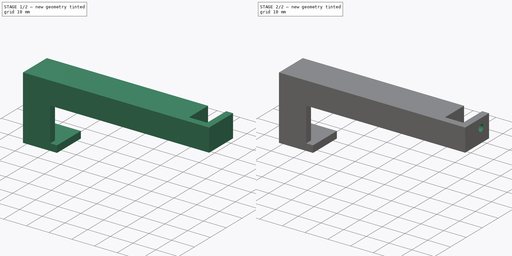
[diagram: build sequence overview — one tinted view per stage of 2, left to right]
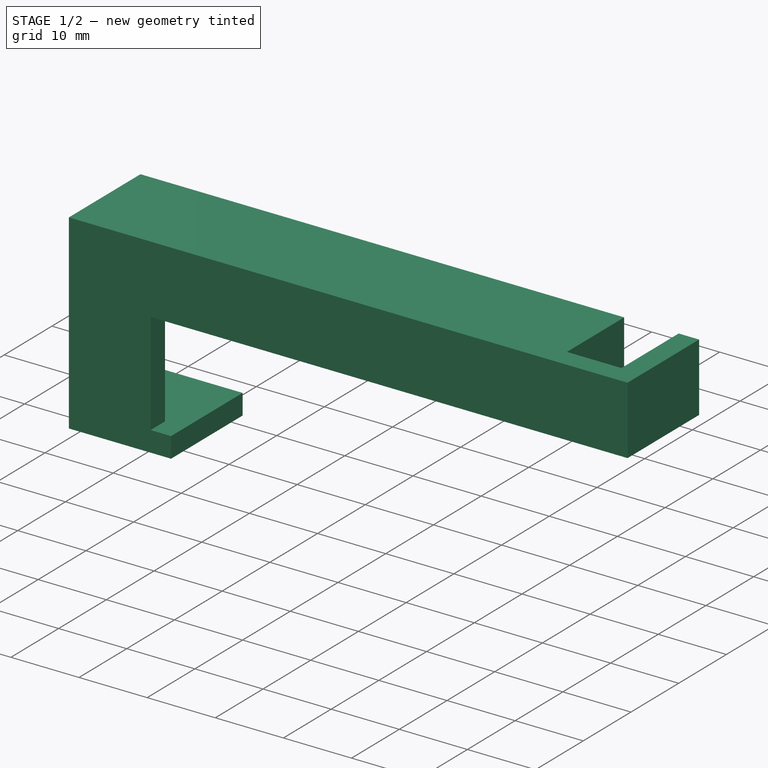
[diagram: stage 1 of 2 — iso view after this stage's code; geometry added in this stage tinted green]
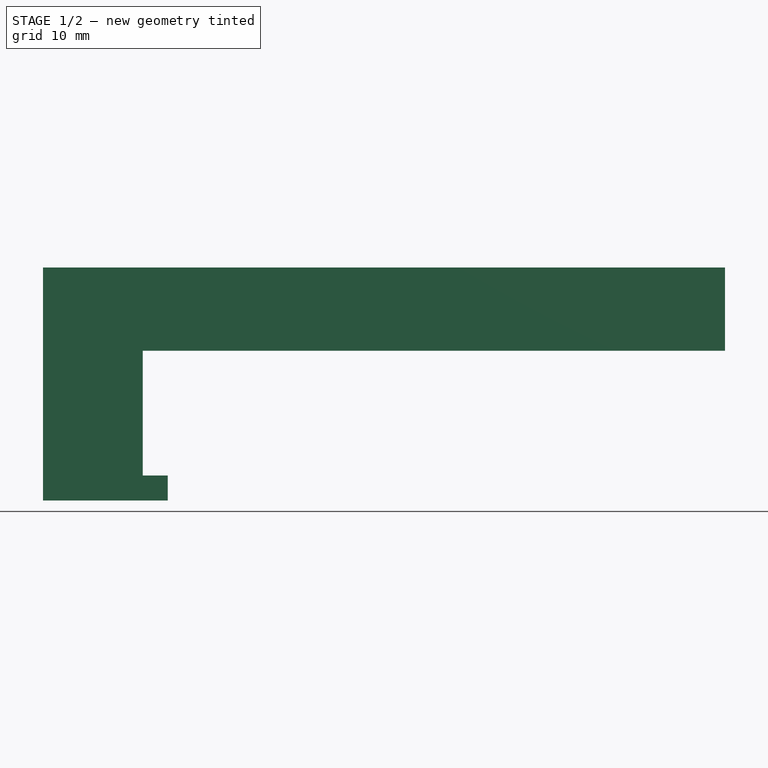
[diagram: stage 1 of 2 — front view after this stage's code; geometry added in this stage tinted green]
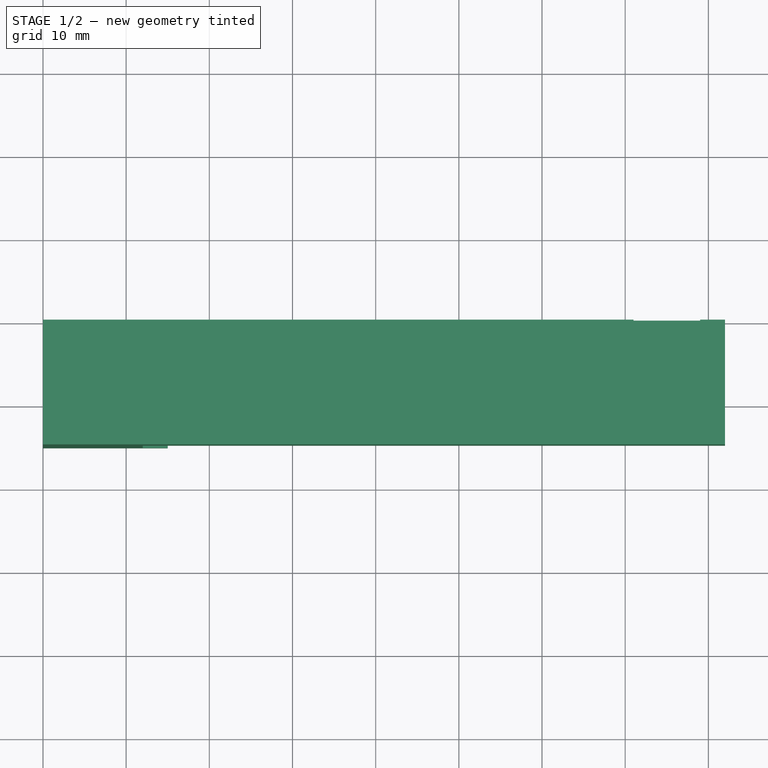
[diagram: stage 1 of 2 — top view after this stage's code; geometry added in this stage tinted green]
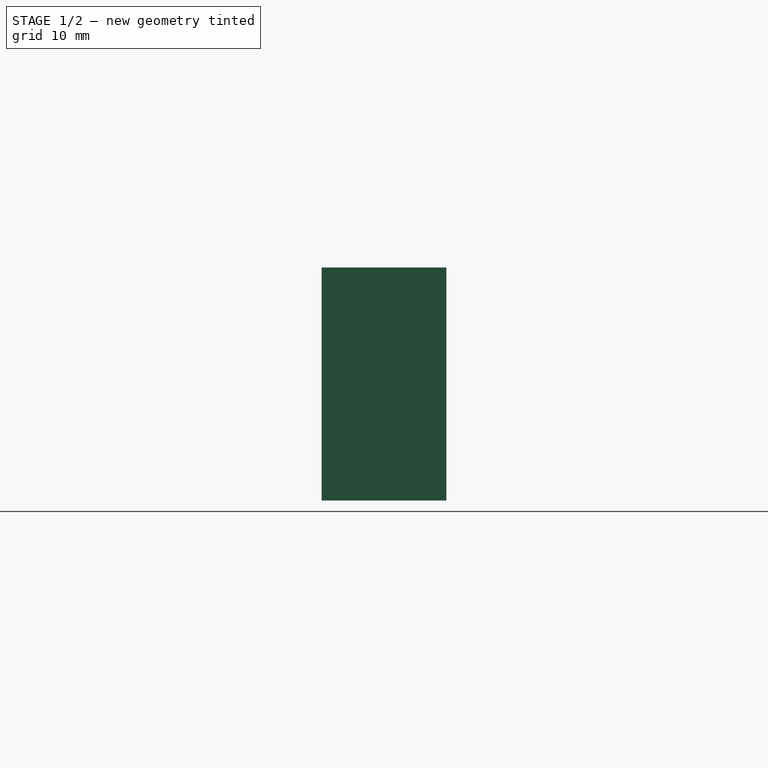
[diagram: stage 1 of 2 — right view after this stage's code; geometry added in this stage tinted green]
FCSTD DOCUMENT  (FreeCAD 1.0R39109 (Git))
Label: Wirecover
License: All rights reserved
LicenseURL: http://en.wikipedia.org/wiki/All_rights_reserved
objects: Sketcher::SketchObject×2, PartDesign::Pad×2, PartDesign::SubtractiveCylinder×1, PartDesign::Body×1
note: 14 computed .brp shape members not serialized (recipe doc carries the construction recipe); baked Part::Feature solids carry a one-line shape summary decoded from their .brp

FEATURE [Sketcher::SketchObject] Sketch
  ArcFitTolerance = 1e-06
  AttachmentSupport = -> [XZ_Plane]
  FullyConstrained = true
  MakeInternals = false
  MapMode = 5
  Placement = pos=(0,0,0) rot=(1,0,0;1.5708rad)
  sketch-geometry (14):
    g0: LineSegment StartX=82 StartY=18 StartZ=0 EndX=82 EndY=28 EndZ=0
    g1: LineSegment StartX=71 StartY=28 StartZ=0 EndX=0 EndY=28 EndZ=0
    g2: LineSegment StartX=0 StartY=28 StartZ=0 EndX=0 EndY=0 EndZ=0
    g3: LineSegment StartX=0 StartY=0 StartZ=0 EndX=15 EndY=0 EndZ=0
    g4: LineSegment StartX=15 StartY=0 StartZ=0 EndX=15 EndY=3 EndZ=0
    g5: LineSegment StartX=15 StartY=3 StartZ=0 EndX=3 EndY=3 EndZ=0
    g6: LineSegment StartX=3 StartY=3 StartZ=0 EndX=3 EndY=25 EndZ=0
    g7: LineSegment StartX=3 StartY=25 StartZ=0 EndX=68 EndY=25 EndZ=0
    g8: LineSegment StartX=68 StartY=18 StartZ=0 EndX=82 EndY=18 EndZ=0
    g9: LineSegment StartX=68 StartY=18 StartZ=0 EndX=68 EndY=25 EndZ=0
    g10: LineSegment StartX=71 StartY=28 StartZ=0 EndX=71 EndY=21 EndZ=0
    g11: LineSegment StartX=71 StartY=21 StartZ=0 EndX=79 EndY=21 EndZ=0
    g12: LineSegment StartX=79 StartY=21 StartZ=0 EndX=79 EndY=28 EndZ=0
    g13: LineSegment StartX=79 StartY=28 StartZ=0 EndX=82 EndY=28 EndZ=0
  constraints (42):
    c: Vertical(g0)
    c: Horizontal(g1)
    c: Coincident(g1,g2)
    c: Vertical(g2)
    c: Coincident(g2,g3)
    c: Horizontal(g3)
    c: Coincident(g3,g4)
    c: Vertical(g4)
    c: Coincident(g4,g5)
    c: Horizontal(g5)
    c: Coincident(g5,g6)
    c: Vertical(g6)
    c: Coincident(g6,g7)
    c: Horizontal(g7)
    c: Coincident(g8,g0)
    c: Horizontal(g8)
    c: DistanceY(g4,g4) = 3
    c: DistanceX(g1,g6) = 3
    c: DistanceX(g3,g3) = 15
    c: DistanceY(g2,g2) = 28
    c: DistanceX(g2) = 0
    c: DistanceY(g2) = 0
    c: Coincident(g9,g7)
    c: Vertical(g9)
    c: DistanceX(g1,g0) = 82
    c: Coincident(g8,g9)
    c: Coincident(g1,g10)
    c: Vertical(g10)
    c: Coincident(g10,g11)
    c: Horizontal(g11)
    c: Coincident(g11,g12)
    c: Vertical(g12)
    c: Coincident(g12,g13)
    c: Coincident(g13,g0)
    c: Horizontal(g13)
    c: DistanceY(g12,g1) = 0
    c: DistanceX(g13,g13) = 3
    c: DistanceX(g8,g10) = 3
    c: DistanceX(g11,g11) = 8
    c: DistanceY(g0,g0) = 10
    c: DistanceY(g0,g11) = 3
    c: DistanceY(g7,g1) = 3
FEATURE [PartDesign::Pad] Pad
  Direction = (0,-1,2e-16)
  Length = 12
  Length2 = 10
  Placement = pos=(0,0,0) rot=(1,0,0;1.5708rad)
  Profile = -> Sketch
  ReferenceAxis = -> Sketch [N_Axis]
  Suppressed = false
  Type = 0
FEATURE [Sketcher::SketchObject] Sketch001
  ArcFitTolerance = 1e-06
  AttachmentOffset = pos=(0,0,12) rot=(0,0,1;0rad)
  AttachmentSupport = -> [XZ_Plane]
  FullyConstrained = true
  MakeInternals = false
  MapMode = 5
  Placement = pos=(0,-12,2.7e-15) rot=(1,0,0;1.5708rad)
  sketch-geometry (8):
    g0: LineSegment StartX=0 StartY=28 StartZ=0 EndX=82 EndY=28 EndZ=0
    g1: LineSegment StartX=82 StartY=28 StartZ=0 EndX=82 EndY=18 EndZ=0
    g2: LineSegment StartX=82 StartY=18 StartZ=0 EndX=12 EndY=18 EndZ=0
    g3: LineSegment StartX=12 StartY=18 StartZ=0 EndX=12 EndY=3 EndZ=0
    g4: LineSegment StartX=15 StartY=0 StartZ=0 EndX=0 EndY=0 EndZ=0
    g5: LineSegment StartX=0 StartY=0 StartZ=0 EndX=0 EndY=28 EndZ=0
    g6: LineSegment StartX=12 StartY=3 StartZ=0 EndX=15 EndY=3 EndZ=0
    g7: LineSegment StartX=15 StartY=3 StartZ=0 EndX=15 EndY=0 EndZ=0
  constraints (24):
    c: Horizontal(g0)
    c: Coincident(g0,g1)
    c: Vertical(g1)
    c: Coincident(g1,g2)
    c: Horizontal(g2)
    c: Coincident(g2,g3)
    c: Vertical(g3)
    c: Horizontal(g4)
    c: Coincident(g4,g5)
    c: Coincident(g5,g0)
    c: Vertical(g5)
    c: DistanceX(g4) = 0
    c: DistanceX(g0,g0) = 82
    c: DistanceY(g5,g5) = 28
    c: DistanceY(g1,g1) = 10
    c: DistanceX(g4,g2) = 12
    c: DistanceX(g4,g4) = 15
    c: Coincident(g3,g6)
    c: Horizontal(g6)
    c: Coincident(g6,g7)
    c: Coincident(g7,g4)
    c: Vertical(g7)
    c: DistanceY(g7,g7) = 3
    c: DistanceY(g4,g-1) = 0
FEATURE [PartDesign::Pad] Pad001
  BaseFeature = -> Pad
  Direction = (0,-1,2e-16)
  Length = 3
  Length2 = 10
  Placement = pos=(0,0,0) rot=(1,0,0;1.5708rad)
  Profile = -> Sketch001
  ReferenceAxis = -> Sketch001 [N_Axis]
  Suppressed = false
  Type = 0
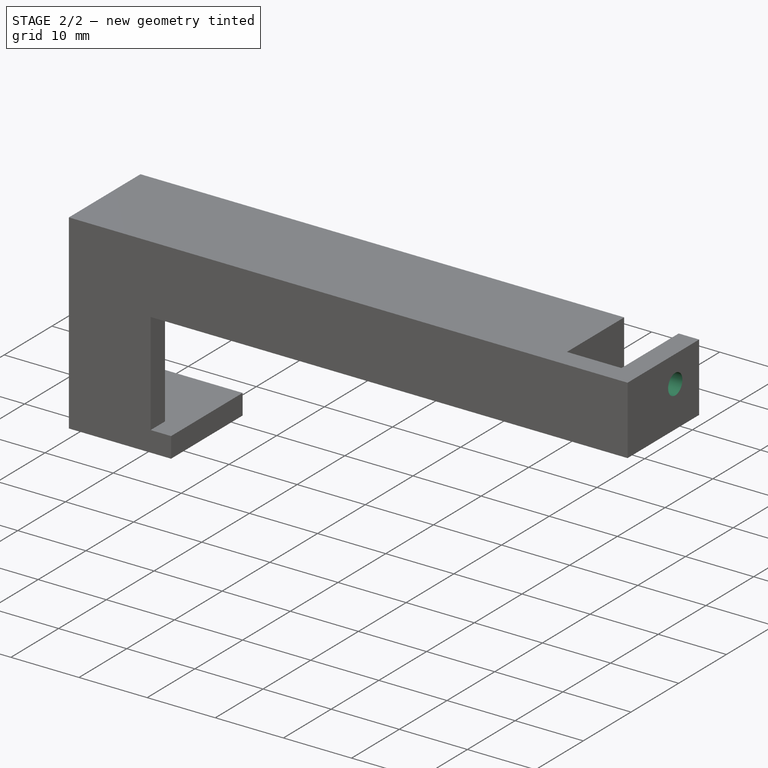
[diagram: stage 2 of 2 — iso view after this stage's code; geometry added in this stage tinted green]
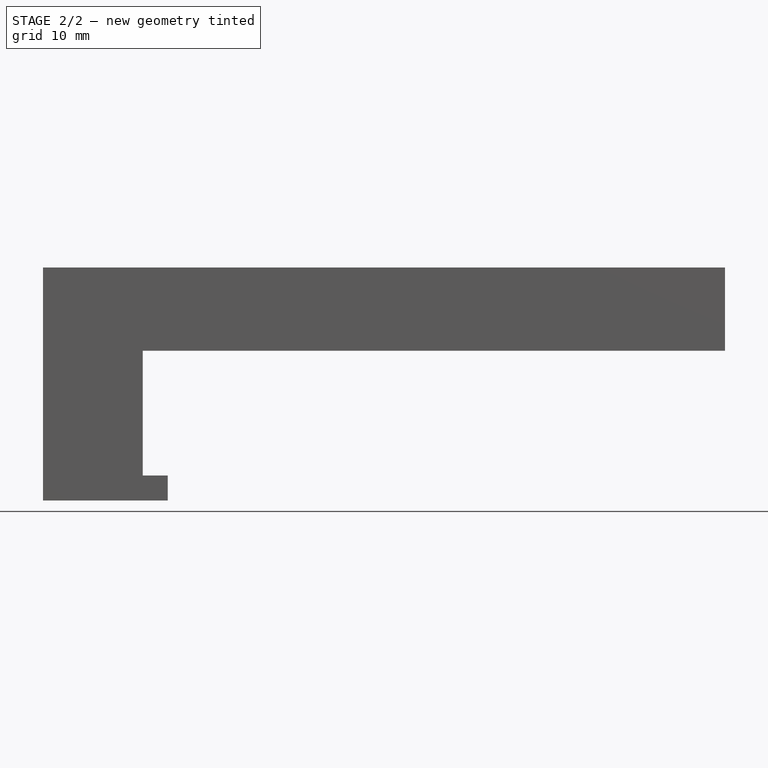
[diagram: stage 2 of 2 — front view after this stage's code; geometry added in this stage tinted green]
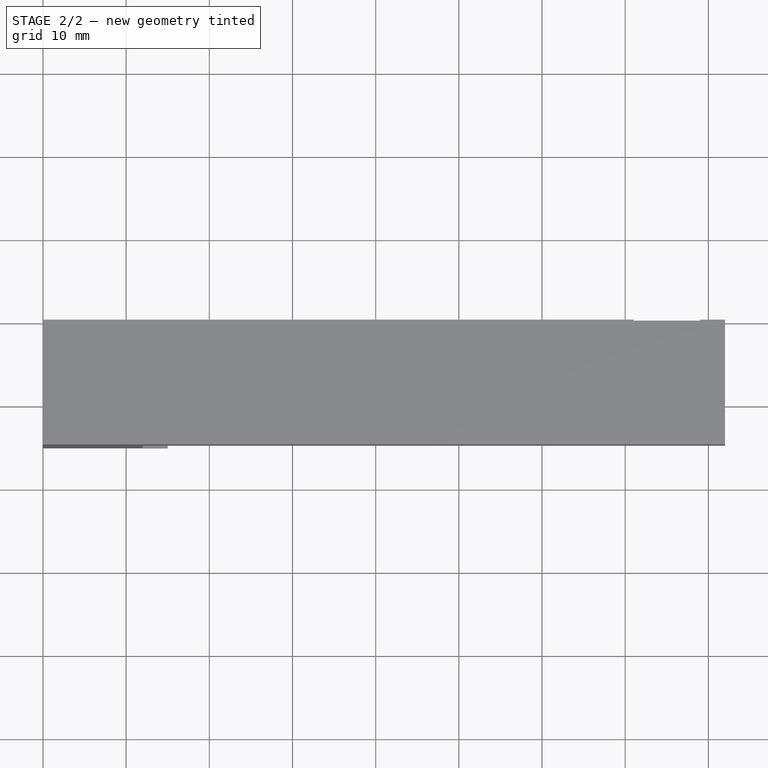
[diagram: stage 2 of 2 — top view after this stage's code; geometry added in this stage tinted green]
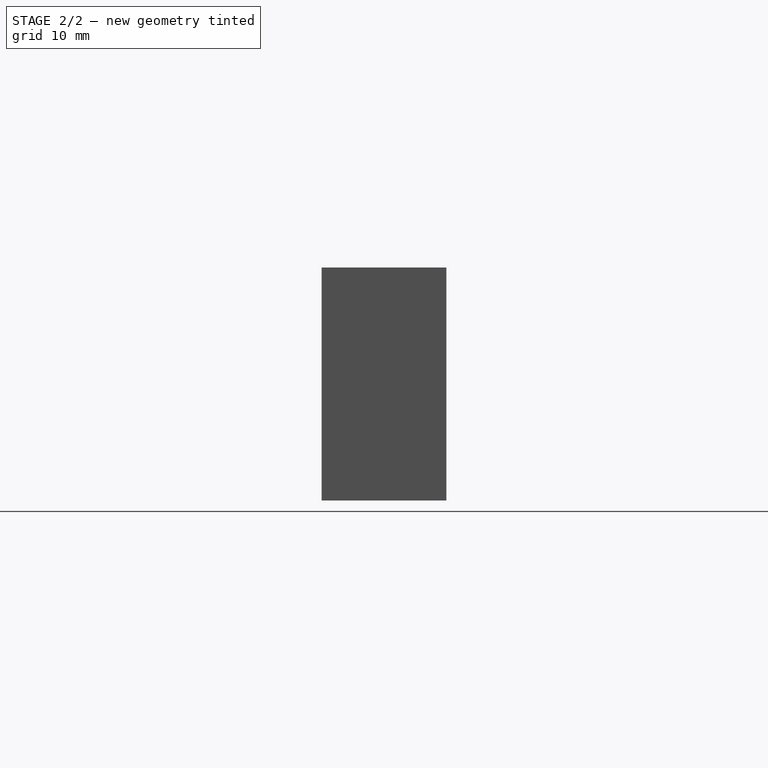
[diagram: stage 2 of 2 — right view after this stage's code; geometry added in this stage tinted green]
FEATURE [PartDesign::SubtractiveCylinder] Cylinder
  Angle = 360
  AttacherType = Attacher::AttachEngine3D
  AttachmentOffset = pos=(-5,24,79) rot=(0,0,1;0rad)
  AttachmentSupport = -> [YZ_Plane]
  BaseFeature = -> Pad001
  FirstAngle = 0
  Height = 3
  MapMode = 5
  Placement = pos=(79,-5,24) rot=(0.57735,0.57735,0.57735;2.0944rad)
  Radius = 1.5
  SecondAngle = 0
  Suppressed = false
FEATURE [PartDesign::Body] Body
  AllowCompound = false
  Group = -> [Pad,Sketch,Sketch001,Pad001,Cylinder]
  Origin = -> Origin
  Tip = -> Cylinder
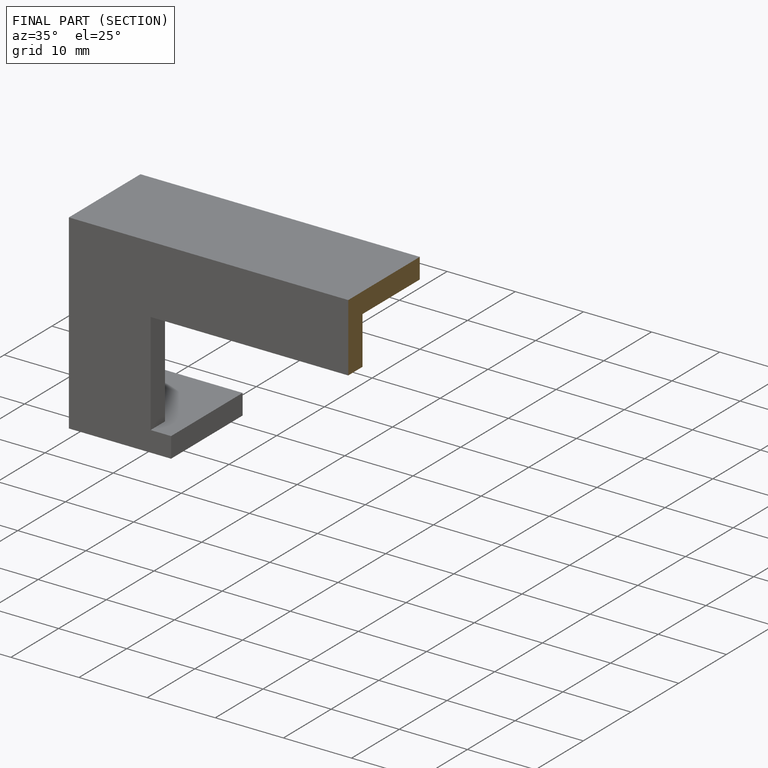
[diagram: finished part — half-section view (interior)]
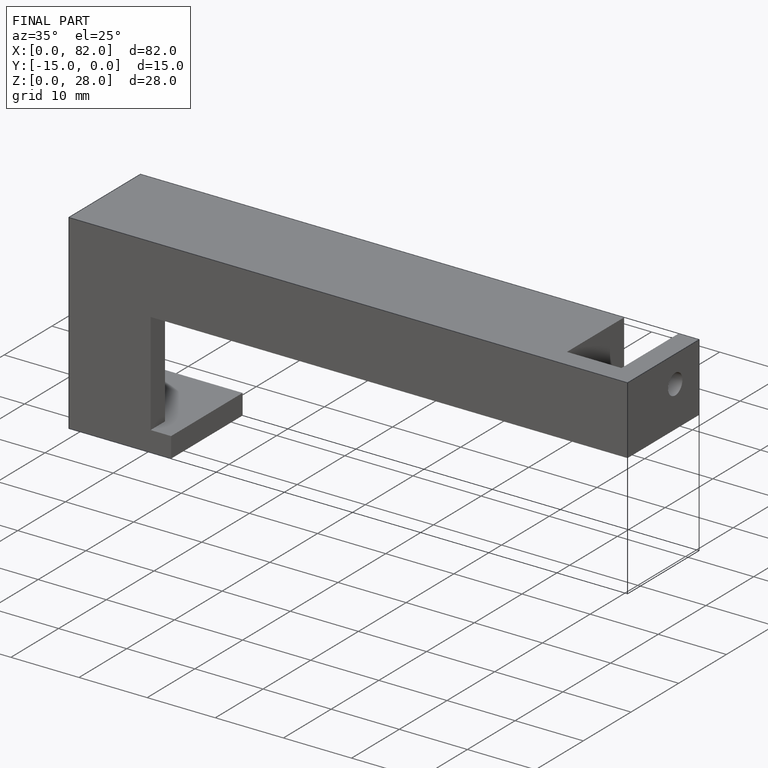
[diagram: finished part — iso view with bounding-box wireframe]
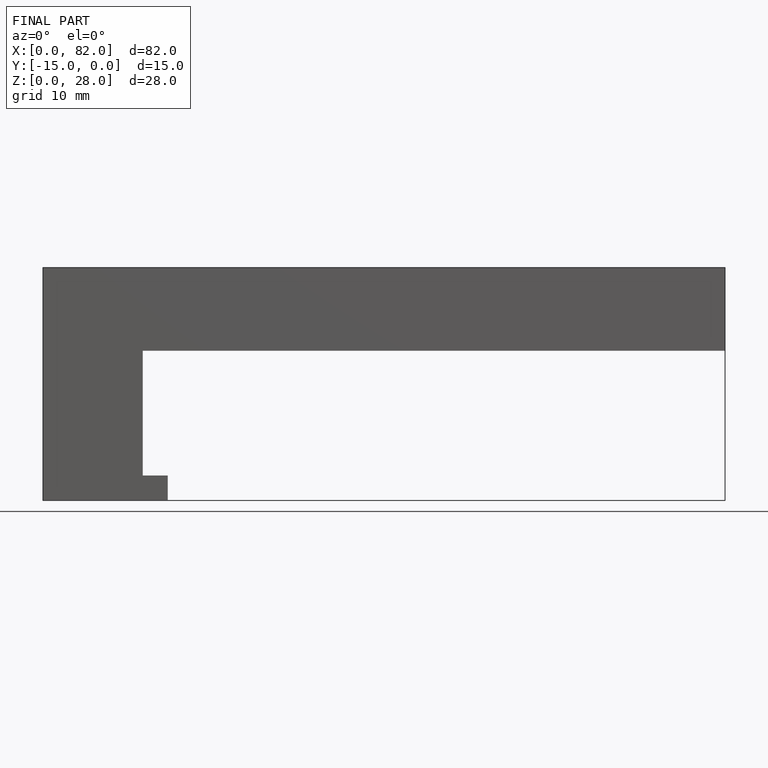
[diagram: finished part — front view with bounding-box wireframe]
